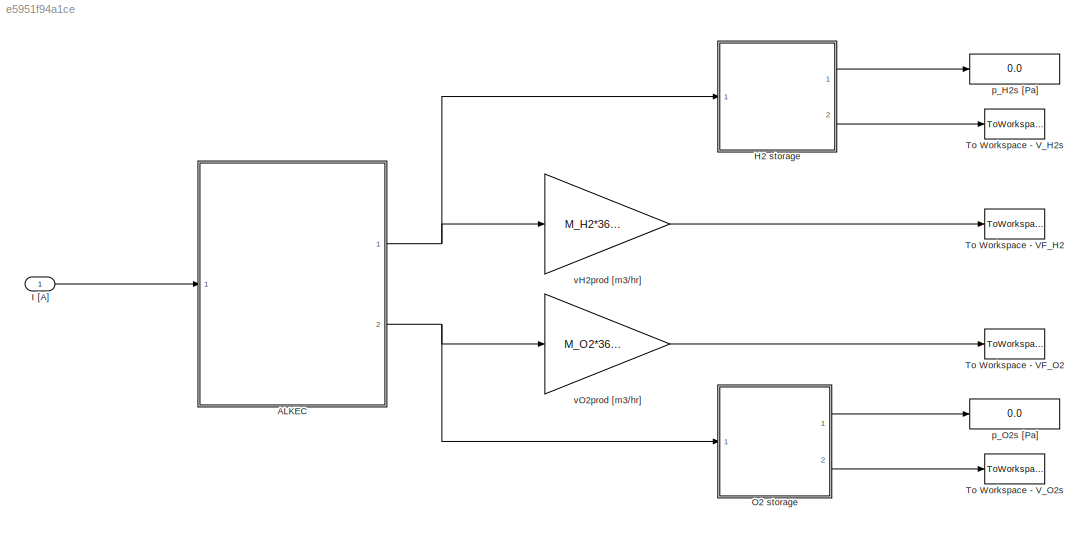
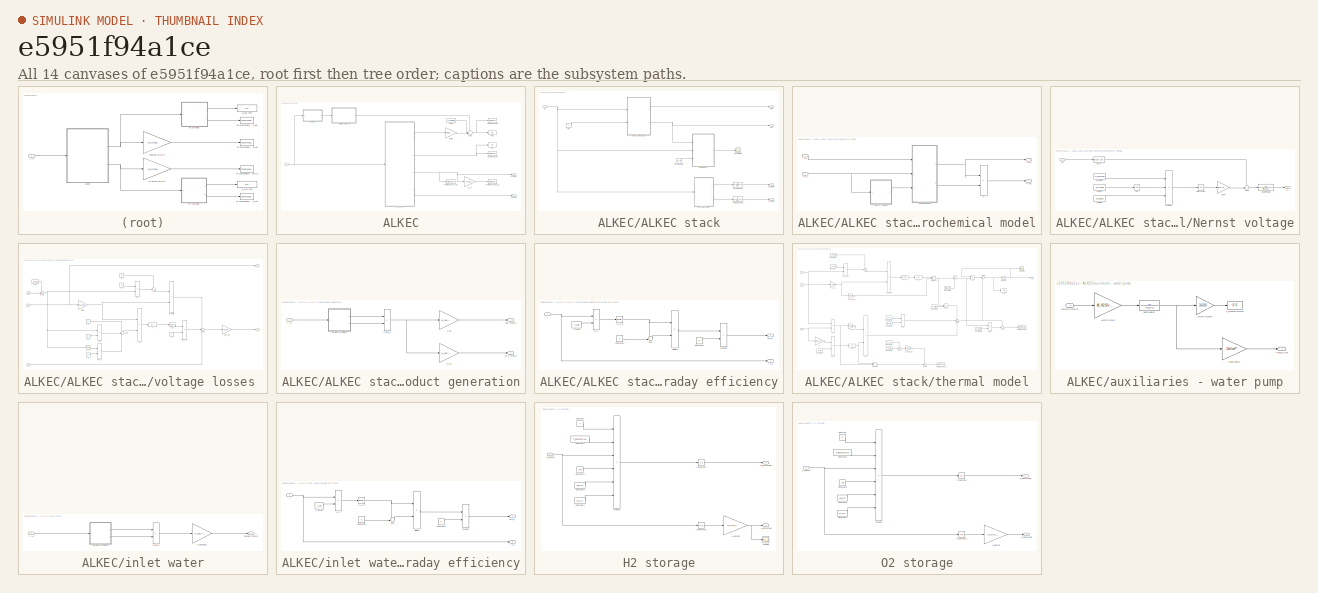
[diagram: thumbnail index - all 14 canvases of the model, root first then tree order]
MODEL slx_e5951f94a1ce
KIND model
CONFIG AbsTol = auto
CONFIG FixedStep = auto
CONFIG MaxStep = 1
CONFIG MinStep = 0.0001
CONFIG RelTol = 1e-3
CONFIG SampleTimeConstraint = Unconstrained
CONFIG Solver = VariableStepAuto
CONFIG SolverMode = SingleTasking
CONFIG SolverName = VariableStepAuto
CONFIG StartTime = 0.0
CONFIG StopTime = 1000
BLOCK [SubSystem] ALKEC
  Ports = [1, 2]
  RequestExecContextInheritance = off
  Variant = off
BLOCK [SubSystem] ALKEC/ALKEC stack
  Ports = [1, 4]
  RequestExecContextInheritance = off
  Variant = off
BLOCK [Inport] ALKEC/ALKEC stack/I [A]
  IconDisplay = Port number
BLOCK [Outport] ALKEC/ALKEC stack/P [W]
  IconDisplay = Port number
BLOCK [Constant] ALKEC/ALKEC stack/T [K]
  Value = T
BLOCK [Scope] ALKEC/ALKEC stack/T evolution K
  Ports = [1]
  ScopeSpecificationString = Simulink.scopes.TimeScopeBlockCfg('CurrentConfiguration', extmgr.ConfigurationSet(extmgr.Configuration('Core','General UI',true),extmgr.Configuration('Core','Source UI',true),extmgr.Configuration('Sources','WiredSimulink',true,'DataLoggingVariableName','ScopeData1'),extmgr.Configuration('Visuals','Time Domain',true,'SerializedDisplays',{struct('MinYLimReal','23.82628','MaxYLimReal','35.32487','YLa...<+1403ch>
BLOCK [Outport] ALKEC/ALKEC stack/V [V]
  IconDisplay = Port number
  Port = 2
BLOCK [SubSystem] ALKEC/ALKEC stack/electrochemical model
  Ports = [2, 2]
  RequestExecContextInheritance = off
  Variant = off
BLOCK [Inport] ALKEC/ALKEC stack/electrochemical model/I [A]
  IconDisplay = Port number
BLOCK [SubSystem] ALKEC/ALKEC stack/electrochemical model/Nernst voltage
  Ports = [1, 1]
  RequestExecContextInheritance = off
  Variant = off
BLOCK [Outport] ALKEC/ALKEC stack/electrochemical model/Nernst voltage/E
  IconDisplay = Port number
BLOCK [Fcn] ALKEC/ALKEC stack/electrochemical model/Nernst voltage/E0(T)
  Expr = 1.5184 - 1.5421e-03 * u + 9.523e-05 * u * log(u) + 9.84e-08 * u^2
BLOCK [Math] ALKEC/ALKEC stack/electrochemical model/Nernst voltage/Math Function
  Operator = log
  Ports = [1, 1]
BLOCK [Product] ALKEC/ALKEC stack/electrochemical model/Nernst voltage/Product
  InputSameDT = off
  Inputs = /**
  OutDataTypeStr = Inherit: Inherit via internal rule
  Ports = [3, 1]
  RndMeth = Floor
  SaturateOnIntegerOverflow = off
BLOCK [Gain] ALKEC/ALKEC stack/electrochemical model/Nernst voltage/RT//2F
  Gain = R*T/(2*F)
  OutDataTypeStr = Inherit: Inherit via internal rule
  ParamDataTypeStr = Inherit: Inherit via internal rule
  SaturateOnIntegerOverflow = off
BLOCK [Sqrt] ALKEC/ALKEC stack/electrochemical model/Nernst voltage/Sqrt
BLOCK [Sum] ALKEC/ALKEC stack/electrochemical model/Nernst voltage/Sum1
  IconShape = round
  InputSameDT = off
  Inputs = ++|
  OutDataTypeStr = Inherit: Inherit via internal rule
  Ports = [2, 1]
  SaturateOnIntegerOverflow = off
BLOCK [Inport] ALKEC/ALKEC stack/electrochemical model/Nernst voltage/T [K]
  IconDisplay = Port number
BLOCK [Constant] ALKEC/ALKEC stack/electrochemical model/Nernst voltage/pH2 [Pa]
  Value = p_H2avg
BLOCK [Constant] ALKEC/ALKEC stack/electrochemical model/Nernst voltage/pH2O [Pa]
  Value = p_H2Oavg
BLOCK [Constant] ALKEC/ALKEC stack/electrochemical model/Nernst voltage/pO2 [Pa]
  Value = p_O2avg
BLOCK [TransferFcn] ALKEC/ALKEC stack/electrochemical model/Nernst voltage/reaction delay
  Denominator = [tau_E 1]
BLOCK [Product] ALKEC/ALKEC stack/electrochemical model/P
  InputSameDT = off
  OutDataTypeStr = Inherit: Inherit via internal rule
  Ports = [2, 1]
  RndMeth = Floor
  SaturateOnIntegerOverflow = off
BLOCK [Outport] ALKEC/ALKEC stack/electrochemical model/P [W]
  IconDisplay = Port number
BLOCK [Inport] ALKEC/ALKEC stack/electrochemical model/T [K]
  IconDisplay = Port number
  Port = 2
BLOCK [Outport] ALKEC/ALKEC stack/electrochemical model/V [V]
  IconDisplay = Port number
  Port = 2
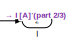
[diagram: ALKEC/ALKEC stack/electrochemical model/voltage losses  - part 1/3, top right region]
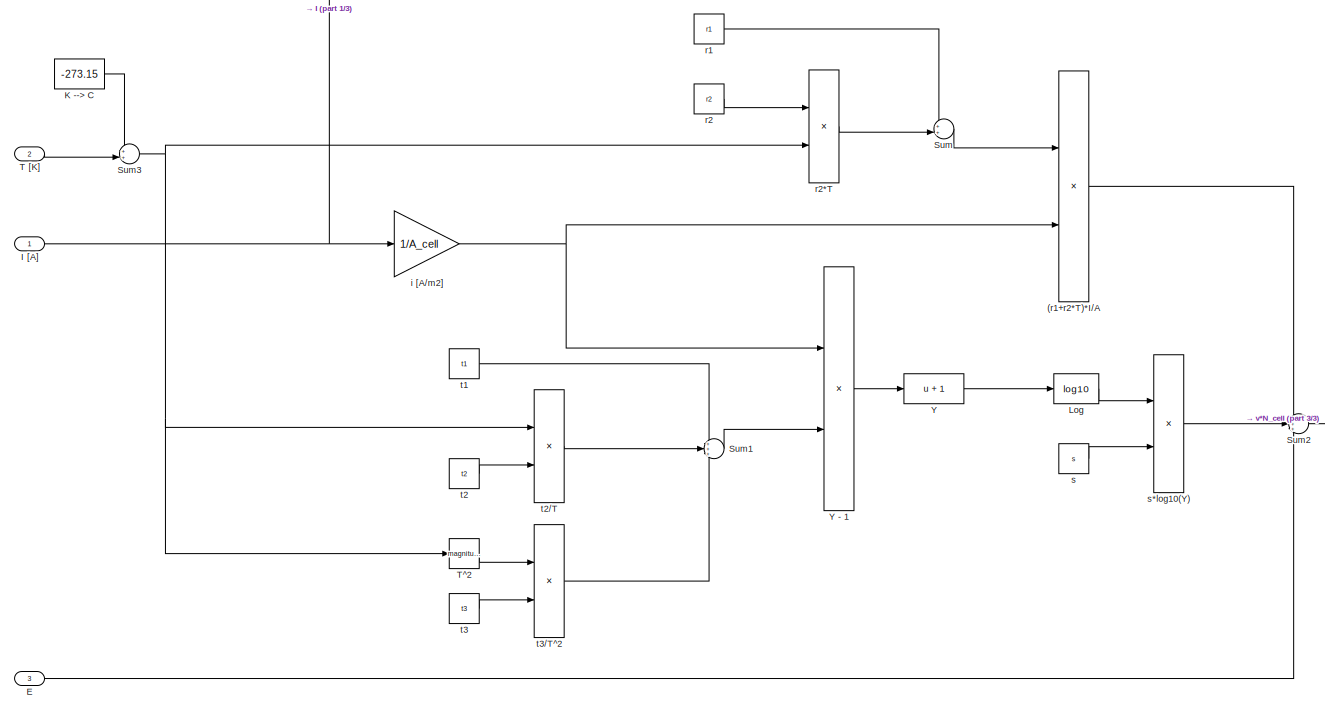
[diagram: ALKEC/ALKEC stack/electrochemical model/voltage losses  - part 2/3, most of the canvas]
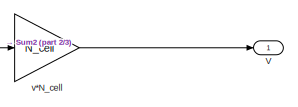
[diagram: ALKEC/ALKEC stack/electrochemical model/voltage losses  - part 3/3, middle right region]
BLOCK [SubSystem] ALKEC/ALKEC stack/electrochemical model/voltage losses 
  Ports = [3, 2]
  RequestExecContextInheritance = off
  Variant = off
BLOCK [Product] ALKEC/ALKEC stack/electrochemical model/voltage losses /(r1+r2*T)*I//A
  InputSameDT = off
  Inputs = **
  OutDataTypeStr = Inherit: Inherit via internal rule
  Ports = [2, 1]
  RndMeth = Floor
  SaturateOnIntegerOverflow = off
BLOCK [Inport] ALKEC/ALKEC stack/electrochemical model/voltage losses /E
  IconDisplay = Port number
  Port = 3
BLOCK [Outport] ALKEC/ALKEC stack/electrochemical model/voltage losses /I
  IconDisplay = Port number
  Port = 2
BLOCK [Inport] ALKEC/ALKEC stack/electrochemical model/voltage losses /I [A] 
  IconDisplay = Port number
BLOCK [Constant] ALKEC/ALKEC stack/electrochemical model/voltage losses /K --> C
  Value = -273.15
BLOCK [Math] ALKEC/ALKEC stack/electrochemical model/voltage losses /Log
  Operator = log10
  Ports = [1, 1]
BLOCK [Sum] ALKEC/ALKEC stack/electrochemical model/voltage losses /Sum
  IconShape = round
  InputSameDT = off
  Inputs = ++|
  OutDataTypeStr = Inherit: Inherit via internal rule
  Ports = [2, 1]
  SaturateOnIntegerOverflow = off
BLOCK [Sum] ALKEC/ALKEC stack/electrochemical model/voltage losses /Sum1
  IconShape = round
  InputSameDT = off
  Inputs = +++
  OutDataTypeStr = Inherit: Inherit via internal rule
  Ports = [3, 1]
  SaturateOnIntegerOverflow = off
BLOCK [Sum] ALKEC/ALKEC stack/electrochemical model/voltage losses /Sum2
  IconShape = round
  InputSameDT = off
  Inputs = +++
  OutDataTypeStr = Inherit: Inherit via internal rule
  Ports = [3, 1]
  SaturateOnIntegerOverflow = off
BLOCK [Sum] ALKEC/ALKEC stack/electrochemical model/voltage losses /Sum3
  IconShape = round
  InputSameDT = off
  Inputs = ++|
  OutDataTypeStr = Inherit: Inherit via internal rule
  Ports = [2, 1]
  SaturateOnIntegerOverflow = off
BLOCK [Inport] ALKEC/ALKEC stack/electrochemical model/voltage losses /T [K]
  IconDisplay = Port number
  Port = 2
BLOCK [Math] ALKEC/ALKEC stack/electrochemical model/voltage losses /T^2
  Operator = magnitude^2
  Ports = [1, 1]
BLOCK [Outport] ALKEC/ALKEC stack/electrochemical model/voltage losses /V
  IconDisplay = Port number
BLOCK [Fcn] ALKEC/ALKEC stack/electrochemical model/voltage losses /Y
  Expr = u + 1
BLOCK [Product] ALKEC/ALKEC stack/electrochemical model/voltage losses /Y - 1
  InputSameDT = off
  Inputs = **
  OutDataTypeStr = Inherit: Inherit via internal rule
  Ports = [2, 1]
  RndMeth = Floor
  SaturateOnIntegerOverflow = off
BLOCK [Gain] ALKEC/ALKEC stack/electrochemical model/voltage losses /i [A//m2]
  Gain = 1/A_cell
  OutDataTypeStr = Inherit: Inherit via internal rule
  ParamDataTypeStr = Inherit: Inherit via internal rule
  SaturateOnIntegerOverflow = off
BLOCK [Constant] ALKEC/ALKEC stack/electrochemical model/voltage losses /r1
  Value = r1
BLOCK [Constant] ALKEC/ALKEC stack/electrochemical model/voltage losses /r2
  Value = r2
BLOCK [Product] ALKEC/ALKEC stack/electrochemical model/voltage losses /r2*T
  InputSameDT = off
  Inputs = **
  OutDataTypeStr = Inherit: Inherit via internal rule
  Ports = [2, 1]
  RndMeth = Floor
  SaturateOnIntegerOverflow = off
BLOCK [Constant] ALKEC/ALKEC stack/electrochemical model/voltage losses /s
  Value = s
BLOCK [Product] ALKEC/ALKEC stack/electrochemical model/voltage losses /s*log10(Y)
  InputSameDT = off
  Inputs = **
  OutDataTypeStr = Inherit: Inherit via internal rule
  Ports = [2, 1]
  RndMeth = Floor
  SaturateOnIntegerOverflow = off
BLOCK [Constant] ALKEC/ALKEC stack/electrochemical model/voltage losses /t1
  Value = t1
BLOCK [Constant] ALKEC/ALKEC stack/electrochemical model/voltage losses /t2
  Value = t2
BLOCK [Product] ALKEC/ALKEC stack/electrochemical model/voltage losses /t2//T
  InputSameDT = off
  Inputs = /*
  OutDataTypeStr = Inherit: Inherit via internal rule
  Ports = [2, 1]
  RndMeth = Floor
  SaturateOnIntegerOverflow = off
BLOCK [Constant] ALKEC/ALKEC stack/electrochemical model/voltage losses /t3
  Value = t3
BLOCK [Product] ALKEC/ALKEC stack/electrochemical model/voltage losses /t3//T^2
  InputSameDT = off
  Inputs = /*
  OutDataTypeStr = Inherit: Inherit via internal rule
  Ports = [2, 1]
  RndMeth = Floor
  SaturateOnIntegerOverflow = off
BLOCK [Gain] ALKEC/ALKEC stack/electrochemical model/voltage losses /v*N_cell
  Gain = N_cell
  OutDataTypeStr = Inherit: Inherit via internal rule
  ParamDataTypeStr = Inherit: Inherit via internal rule
  SaturateOnIntegerOverflow = off
BLOCK [TransferFcn] ALKEC/ALKEC stack/hydrogen delay
  Denominator = [5 1]
BLOCK [Constant] ALKEC/ALKEC stack/m cooling [kg//s]
  Value = m_cw
BLOCK [Outport] ALKEC/ALKEC stack/nH2 [mol//s]
  IconDisplay = Port number
  Port = 3
BLOCK [Outport] ALKEC/ALKEC stack/nO2 [mol//s]
  IconDisplay = Port number
  Port = 4
BLOCK [TransferFcn] ALKEC/ALKEC stack/oxygen delay
  Denominator = [5 1]
BLOCK [SubSystem] ALKEC/ALKEC stack/product generation
  Ports = [1, 2]
  RequestExecContextInheritance = off
  Variant = off
BLOCK [SubSystem] ALKEC/ALKEC stack/product generation/Faraday efficiency
  Ports = [1, 2]
  RequestExecContextInheritance = off
  Variant = off
BLOCK [Math] ALKEC/ALKEC stack/product generation/Faraday efficiency/(I//A)^2
  Operator = magnitude^2
  Ports = [1, 1]
BLOCK [Constant] ALKEC/ALKEC stack/product generation/Faraday efficiency/A [m2]
  Value = A_cell
BLOCK [Constant] ALKEC/ALKEC stack/product generation/Faraday efficiency/Constant1
  Value = f1
BLOCK [Constant] ALKEC/ALKEC stack/product generation/Faraday efficiency/Constant2
  Value = f2
BLOCK [Product] ALKEC/ALKEC stack/product generation/Faraday efficiency/Divide1
  InputSameDT = off
  Inputs = */
  OutDataTypeStr = Inherit: Inherit via internal rule
  Ports = [2, 1]
  RndMeth = Floor
  SaturateOnIntegerOverflow = off
BLOCK [Inport] ALKEC/ALKEC stack/product generation/Faraday efficiency/I
  IconDisplay = Port number
BLOCK [Outport] ALKEC/ALKEC stack/product generation/Faraday efficiency/I [A]
  IconDisplay = Port number
  Port = 2
BLOCK [Product] ALKEC/ALKEC stack/product generation/Faraday efficiency/I//A
  InputSameDT = off
  Inputs = */
  OutDataTypeStr = Inherit: Inherit via internal rule
  Ports = [2, 1]
  RndMeth = Floor
  SaturateOnIntegerOverflow = off
BLOCK [Product] ALKEC/ALKEC stack/product generation/Faraday efficiency/Product
  InputSameDT = off
  OutDataTypeStr = Inherit: Inherit via internal rule
  Ports = [2, 1]
  RndMeth = Floor
  SaturateOnIntegerOverflow = off
BLOCK [Sum] ALKEC/ALKEC stack/product generation/Faraday efficiency/Sum
  IconShape = round
  InputSameDT = off
  Inputs = ++|
  OutDataTypeStr = Inherit: Inherit via internal rule
  Ports = [2, 1]
  SaturateOnIntegerOverflow = off
BLOCK [Outport] ALKEC/ALKEC stack/product generation/Faraday efficiency/eta_F
  IconDisplay = Port number
BLOCK [Inport] ALKEC/ALKEC stack/product generation/I [A]
  IconDisplay = Port number
BLOCK [Product] ALKEC/ALKEC stack/product generation/I*eta_F
  InputSameDT = off
  OutDataTypeStr = Inherit: Inherit via internal rule
  Ports = [2, 1]
  RndMeth = Floor
  SaturateOnIntegerOverflow = off
BLOCK [Outport] ALKEC/ALKEC stack/product generation/nH2 [mol//s]
  IconDisplay = Port number
  Port = 2
BLOCK [Outport] ALKEC/ALKEC stack/product generation/nO2 [mol//s]
  IconDisplay = Port number
BLOCK [Gain] ALKEC/ALKEC stack/product generation/n_H2
  Gain = N_cell/(2*F)
  OutDataTypeStr = Inherit: Inherit via internal rule
  ParamDataTypeStr = Inherit: Inherit via internal rule
  SaturateOnIntegerOverflow = off
BLOCK [Gain] ALKEC/ALKEC stack/product generation/n_O2
  Gain = N_cell/(4*F)
  OutDataTypeStr = Inherit: Inherit via internal rule
  ParamDataTypeStr = Inherit: Inherit via internal rule
  SaturateOnIntegerOverflow = off
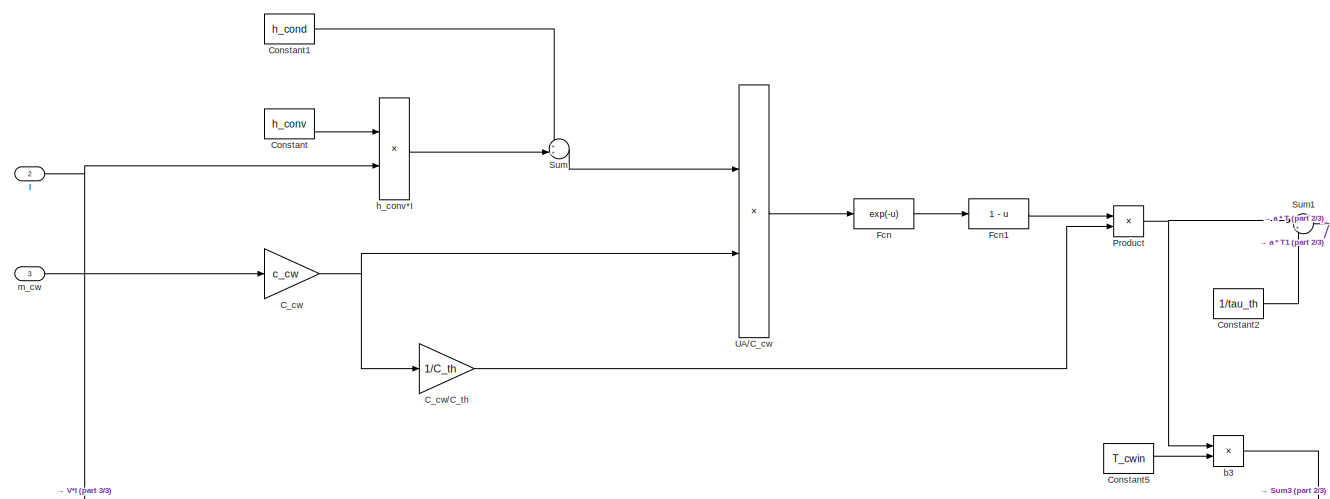
[diagram: ALKEC/ALKEC stack/thermal model - part 1/3, top center region]
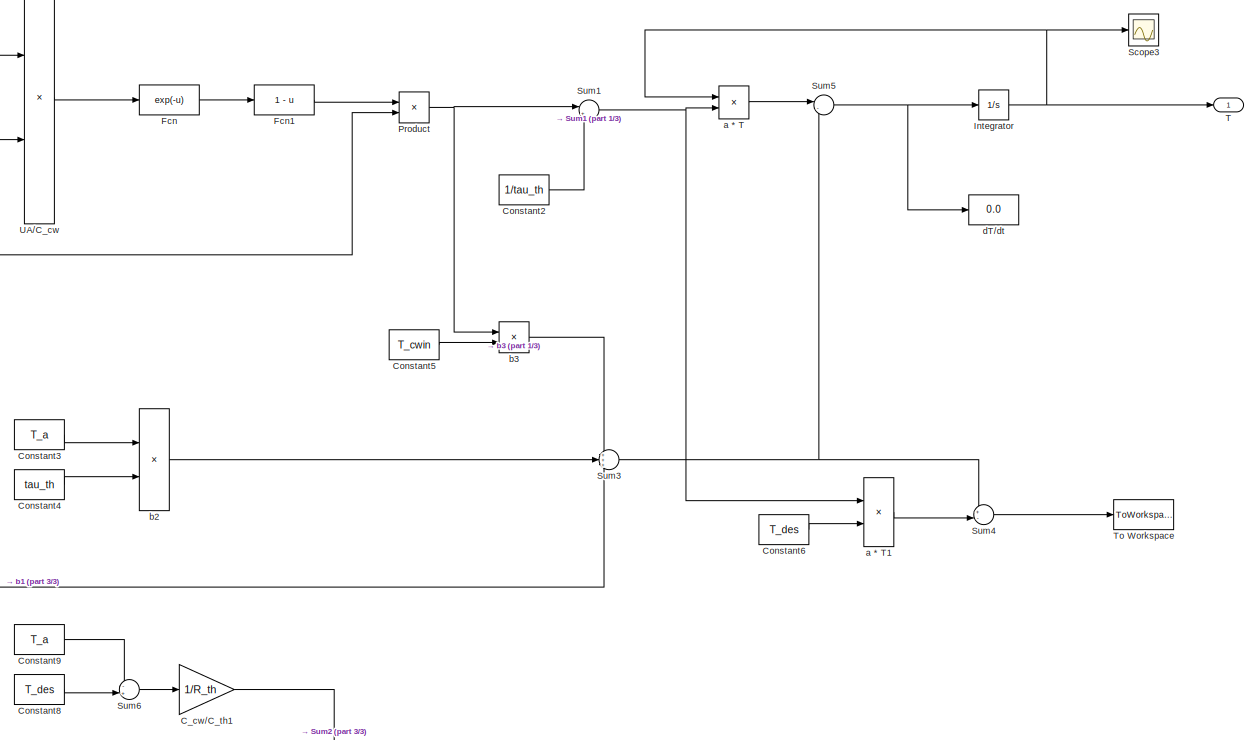
[diagram: ALKEC/ALKEC stack/thermal model - part 2/3, right side, full height]
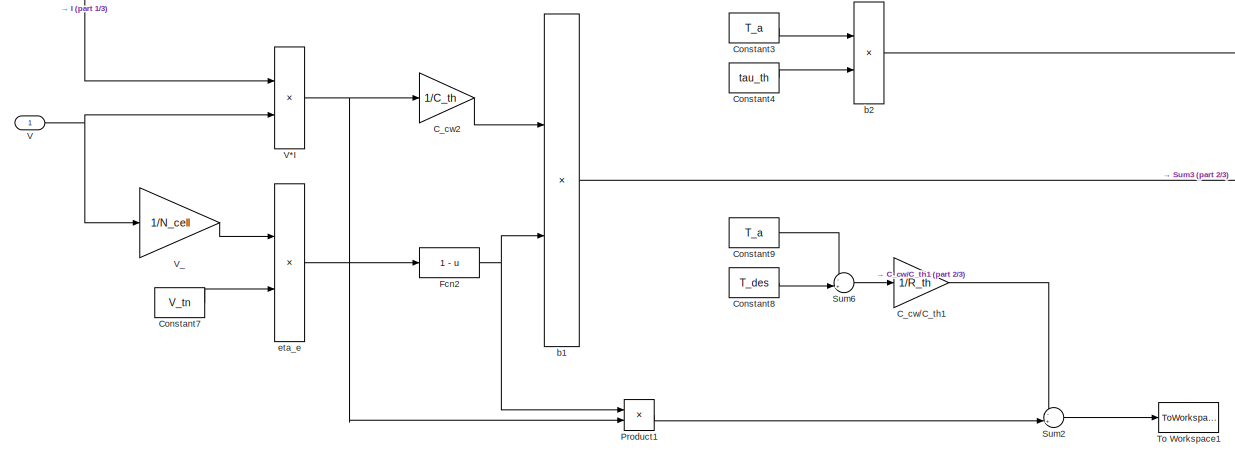
[diagram: ALKEC/ALKEC stack/thermal model - part 3/3, bottom left region]
BLOCK [SubSystem] ALKEC/ALKEC stack/thermal model
  Ports = [3, 1]
  RequestExecContextInheritance = off
  Variant = off
BLOCK [Gain] ALKEC/ALKEC stack/thermal model/C_cw
  Gain = c_cw
  OutDataTypeStr = Inherit: Inherit via internal rule
  ParamDataTypeStr = Inherit: Inherit via internal rule
  SaturateOnIntegerOverflow = off
BLOCK [Gain] ALKEC/ALKEC stack/thermal model/C_cw//C_th
  Gain = 1/C_th
  OutDataTypeStr = Inherit: Inherit via internal rule
  ParamDataTypeStr = Inherit: Inherit via internal rule
  SaturateOnIntegerOverflow = off
BLOCK [Gain] ALKEC/ALKEC stack/thermal model/C_cw//C_th1
  Gain = 1/R_th
  OutDataTypeStr = Inherit: Inherit via internal rule
  ParamDataTypeStr = Inherit: Inherit via internal rule
  SaturateOnIntegerOverflow = off
BLOCK [Gain] ALKEC/ALKEC stack/thermal model/C_cw2
  Gain = 1/C_th
  OutDataTypeStr = Inherit: Inherit via internal rule
  ParamDataTypeStr = Inherit: Inherit via internal rule
  SaturateOnIntegerOverflow = off
BLOCK [Constant] ALKEC/ALKEC stack/thermal model/Constant
  Value = h_conv
BLOCK [Constant] ALKEC/ALKEC stack/thermal model/Constant1
  Value = h_cond
BLOCK [Constant] ALKEC/ALKEC stack/thermal model/Constant2
  Value = 1/tau_th
BLOCK [Constant] ALKEC/ALKEC stack/thermal model/Constant3
  Value = T_a
BLOCK [Constant] ALKEC/ALKEC stack/thermal model/Constant4
  Value = tau_th
BLOCK [Constant] ALKEC/ALKEC stack/thermal model/Constant5
  Value = T_cwin
BLOCK [Constant] ALKEC/ALKEC stack/thermal model/Constant6
  Value = T_des
BLOCK [Constant] ALKEC/ALKEC stack/thermal model/Constant7
  Value = V_tn
BLOCK [Constant] ALKEC/ALKEC stack/thermal model/Constant8
  Value = T_des
BLOCK [Constant] ALKEC/ALKEC stack/thermal model/Constant9
  Value = T_a
BLOCK [Fcn] ALKEC/ALKEC stack/thermal model/Fcn
  Expr = exp(-u)
BLOCK [Fcn] ALKEC/ALKEC stack/thermal model/Fcn1
  Expr = 1 - u
BLOCK [Fcn] ALKEC/ALKEC stack/thermal model/Fcn2
  Expr = 1 - u
BLOCK [Inport] ALKEC/ALKEC stack/thermal model/I
  IconDisplay = Port number
  Port = 2
BLOCK [Integrator] ALKEC/ALKEC stack/thermal model/Integrator
  InitialCondition = T0
  Ports = [1, 1]
BLOCK [Product] ALKEC/ALKEC stack/thermal model/Product
  InputSameDT = off
  OutDataTypeStr = Inherit: Inherit via internal rule
  Ports = [2, 1]
  RndMeth = Floor
  SaturateOnIntegerOverflow = off
BLOCK [Product] ALKEC/ALKEC stack/thermal model/Product1
  InputSameDT = off
  OutDataTypeStr = Inherit: Inherit via internal rule
  Ports = [2, 1]
  RndMeth = Floor
  SaturateOnIntegerOverflow = off
BLOCK [Scope] ALKEC/ALKEC stack/thermal model/Scope3
  Ports = [1]
  ScopeSpecificationString = Simulink.scopes.TimeScopeBlockCfg('CurrentConfiguration', extmgr.ConfigurationSet(extmgr.Configuration('Core','General UI',true),extmgr.Configuration('Core','Source UI',true),extmgr.Configuration('Sources','WiredSimulink',true,'DataLoggingVariableName','ScopeData1'),extmgr.Configuration('Visuals','Time Domain',true,'SerializedDisplays',{struct('MinYLimReal','23.82628','MaxYLimReal','35.32487','YLa...<+1429ch>
BLOCK [Sum] ALKEC/ALKEC stack/thermal model/Sum
  IconShape = round
  InputSameDT = off
  Inputs = ++|
  OutDataTypeStr = Inherit: Inherit via internal rule
  Ports = [2, 1]
  SaturateOnIntegerOverflow = off
BLOCK [Sum] ALKEC/ALKEC stack/thermal model/Sum1
  IconShape = round
  InputSameDT = off
  Inputs = |++
  OutDataTypeStr = Inherit: Inherit via internal rule
  Ports = [2, 1]
  SaturateOnIntegerOverflow = off
BLOCK [Sum] ALKEC/ALKEC stack/thermal model/Sum2
  IconShape = round
  InputSameDT = off
  Inputs = -+|
  OutDataTypeStr = Inherit: Inherit via internal rule
  Ports = [2, 1]
  SaturateOnIntegerOverflow = off
BLOCK [Sum] ALKEC/ALKEC stack/thermal model/Sum3
  IconShape = round
  InputSameDT = off
  Inputs = +++
  OutDataTypeStr = Inherit: Inherit via internal rule
  Ports = [3, 1]
  SaturateOnIntegerOverflow = off
BLOCK [Sum] ALKEC/ALKEC stack/thermal model/Sum4
  IconShape = round
  InputSameDT = off
  Inputs = +-|
  OutDataTypeStr = Inherit: Inherit via internal rule
  Ports = [2, 1]
  SaturateOnIntegerOverflow = off
BLOCK [Sum] ALKEC/ALKEC stack/thermal model/Sum5
  IconShape = round
  InputSameDT = off
  Inputs = |-+
  OutDataTypeStr = Inherit: Inherit via internal rule
  Ports = [2, 1]
  SaturateOnIntegerOverflow = off
BLOCK [Sum] ALKEC/ALKEC stack/thermal model/Sum6
  IconShape = round
  InputSameDT = off
  Inputs = -+|
  OutDataTypeStr = Inherit: Inherit via internal rule
  Ports = [2, 1]
  SaturateOnIntegerOverflow = off
BLOCK [Outport] ALKEC/ALKEC stack/thermal model/T
  IconDisplay = Port number
BLOCK [ToWorkspace] ALKEC/ALKEC stack/thermal model/To Workspace
  FixptAsFi = on
  MaxDataPoints = inf
  Ports = [1]
  SampleTime = -1
  Save2DSignal = 3-D array (concatenate along third dimension)
  SaveFormat = Timeseries
  VariableName = dTdt
BLOCK [ToWorkspace] ALKEC/ALKEC stack/thermal model/To Workspace1
  FixptAsFi = on
  MaxDataPoints = inf
  Ports = [1]
  SampleTime = -1
  Save2DSignal = 3-D array (concatenate along third dimension)
  SaveFormat = Timeseries
  VariableName = Qcool
BLOCK [Product] ALKEC/ALKEC stack/thermal model/UA//C_cw
  InputSameDT = off
  Inputs = */
  OutDataTypeStr = Inherit: Inherit via internal rule
  Ports = [2, 1]
  RndMeth = Floor
  SaturateOnIntegerOverflow = off
BLOCK [Inport] ALKEC/ALKEC stack/thermal model/V
  IconDisplay = Port number
BLOCK [Product] ALKEC/ALKEC stack/thermal model/V*I
  InputSameDT = off
  OutDataTypeStr = Inherit: Inherit via internal rule
  Ports = [2, 1]
  RndMeth = Floor
  SaturateOnIntegerOverflow = off
BLOCK [Gain] ALKEC/ALKEC stack/thermal model/V_
  Gain = 1/N_cell
  OutDataTypeStr = Inherit: Inherit via internal rule
  ParamDataTypeStr = Inherit: Inherit via internal rule
  SaturateOnIntegerOverflow = off
BLOCK [Product] ALKEC/ALKEC stack/thermal model/a * T
  InputSameDT = off
  OutDataTypeStr = Inherit: Inherit via internal rule
  Ports = [2, 1]
  RndMeth = Floor
  SaturateOnIntegerOverflow = off
BLOCK [Product] ALKEC/ALKEC stack/thermal model/a * T1
  InputSameDT = off
  OutDataTypeStr = Inherit: Inherit via internal rule
  Ports = [2, 1]
  RndMeth = Floor
  SaturateOnIntegerOverflow = off
BLOCK [Product] ALKEC/ALKEC stack/thermal model/b1
  InputSameDT = off
  OutDataTypeStr = Inherit: Inherit via internal rule
  Ports = [2, 1]
  RndMeth = Floor
  SaturateOnIntegerOverflow = off
BLOCK [Product] ALKEC/ALKEC stack/thermal model/b2
  InputSameDT = off
  Inputs = */
  OutDataTypeStr = Inherit: Inherit via internal rule
  Ports = [2, 1]
  RndMeth = Floor
  SaturateOnIntegerOverflow = off
BLOCK [Product] ALKEC/ALKEC stack/thermal model/b3
  InputSameDT = off
  OutDataTypeStr = Inherit: Inherit via internal rule
  Ports = [2, 1]
  RndMeth = Floor
  SaturateOnIntegerOverflow = off
BLOCK [Display] ALKEC/ALKEC stack/thermal model/dT//dt
  Decimation = 1
  Ports = [1]
BLOCK [Product] ALKEC/ALKEC stack/thermal model/eta_e
  InputSameDT = off
  Inputs = /*
  OutDataTypeStr = Inherit: Inherit via internal rule
  Ports = [2, 1]
  RndMeth = Floor
  SaturateOnIntegerOverflow = off
BLOCK [Product] ALKEC/ALKEC stack/thermal model/h_conv*I
  InputSameDT = off
  OutDataTypeStr = Inherit: Inherit via internal rule
  Ports = [2, 1]
  RndMeth = Floor
  SaturateOnIntegerOverflow = off
BLOCK [Inport] ALKEC/ALKEC stack/thermal model/m_cw
  IconDisplay = Port number
  Port = 3
BLOCK [Inport] ALKEC/I
  IconDisplay = Port number
BLOCK [Display] ALKEC/P [W]
  Decimation = 1
  Ports = [1]
BLOCK [Constant] ALKEC/PBOP
  Value = P_gamma
BLOCK [Gain] ALKEC/Q_H2
  Gain = 2*120
  OutDataTypeStr = Inherit: Inherit via internal rule
  ParamDataTypeStr = Inherit: Inherit via internal rule
  SaturateOnIntegerOverflow = off
BLOCK [Sum] ALKEC/Sum1
  IconShape = round
  InputSameDT = off
  Inputs = +++||
  OutDataTypeStr = Inherit: Inherit via internal rule
  Ports = [3, 1]
  SaturateOnIntegerOverflow = off
BLOCK [ToWorkspace] ALKEC/To Workspace - P
  FixptAsFi = on
  MaxDataPoints = inf
  Ports = [1]
  SampleTime = -1
  Save2DSignal = 3-D array (concatenate along third dimension)
  SaveFormat = Timeseries
  VariableName = PP
BLOCK [ToWorkspace] ALKEC/To Workspace - Q_H2
  FixptAsFi = on
  MaxDataPoints = inf
  Ports = [1]
  SampleTime = -1
  Save2DSignal = 3-D array (concatenate along third dimension)
  SaveFormat = Timeseries
  VariableName = Q_H2
BLOCK [ToWorkspace] ALKEC/To Workspace - V
  FixptAsFi = on
  MaxDataPoints = inf
  Ports = [1]
  SampleTime = -1
  Save2DSignal = 3-D array (concatenate along third dimension)
  SaveFormat = Timeseries
  VariableName = VV
BLOCK [ToWorkspace] ALKEC/To Workspace - n_H2
  FixptAsFi = on
  MaxDataPoints = inf
  Ports = [1]
  SampleTime = -1
  Save2DSignal = 3-D array (concatenate along third dimension)
  SaveFormat = Timeseries
  VariableName = n_H2
BLOCK [Display] ALKEC/V [V]
  Decimation = 1
  Ports = [1]
BLOCK [SubSystem] ALKEC/auxiliaries - water pump
  Ports = [1, 1]
  RequestExecContextInheritance = off
  Variant = off
BLOCK [Gain] ALKEC/auxiliaries - water pump/Paux pump
  Gain = DeltaP
  OutDataTypeStr = Inherit: Inherit via internal rule
  ParamDataTypeStr = Inherit: Inherit via internal rule
  SaturateOnIntegerOverflow = off
BLOCK [Outport] ALKEC/auxiliaries - water pump/Paux_p [W]
  IconDisplay = Port number
BLOCK [Inport] ALKEC/auxiliaries - water pump/nH2Oin [mol//s]
  IconDisplay = Port number
BLOCK [TransferFcn] ALKEC/auxiliaries - water pump/pump delay
  Denominator = [tau_p 1]
BLOCK [Gain] ALKEC/auxiliaries - water pump/vH2in [m3//hr]
  Gain = 3600
  OutDataTypeStr = Inherit: Inherit via internal rule
  ParamDataTypeStr = Inherit: Inherit via internal rule
  SaturateOnIntegerOverflow = off
BLOCK [Gain] ALKEC/auxiliaries - water pump/vH2in [m3//s]
  Gain = M_H2O/v_H2O
  OutDataTypeStr = Inherit: Inherit via internal rule
  ParamDataTypeStr = Inherit: Inherit via internal rule
  SaturateOnIntegerOverflow = off
BLOCK [Display] ALKEC/auxiliaries - water pump/v_H2Oan [m3//hr]
  Decimation = 1
  Ports = [1]
BLOCK [SubSystem] ALKEC/inlet water
  Ports = [1, 1]
  RequestExecContextInheritance = off
  Variant = off
BLOCK [SubSystem] ALKEC/inlet water/Faraday efficiency
  Ports = [1, 2]
  RequestExecContextInheritance = off
  Variant = off
BLOCK [Math] ALKEC/inlet water/Faraday efficiency/(I//A)^2
  Operator = magnitude^2
  Ports = [1, 1]
BLOCK [Constant] ALKEC/inlet water/Faraday efficiency/A [m2]
  Value = A_cell
BLOCK [Constant] ALKEC/inlet water/Faraday efficiency/Constant1
  Value = f1
BLOCK [Constant] ALKEC/inlet water/Faraday efficiency/Constant2
  Value = f2
BLOCK [Product] ALKEC/inlet water/Faraday efficiency/Divide1
  InputSameDT = off
  Inputs = */
  OutDataTypeStr = Inherit: Inherit via internal rule
  Ports = [2, 1]
  RndMeth = Floor
  SaturateOnIntegerOverflow = off
BLOCK [Inport] ALKEC/inlet water/Faraday efficiency/I
  IconDisplay = Port number
BLOCK [Outport] ALKEC/inlet water/Faraday efficiency/I [A]
  IconDisplay = Port number
  Port = 2
BLOCK [Product] ALKEC/inlet water/Faraday efficiency/I//A
  InputSameDT = off
  Inputs = */
  OutDataTypeStr = Inherit: Inherit via internal rule
  Ports = [2, 1]
  RndMeth = Floor
  SaturateOnIntegerOverflow = off
BLOCK [Product] ALKEC/inlet water/Faraday efficiency/Product
  InputSameDT = off
  OutDataTypeStr = Inherit: Inherit via internal rule
  Ports = [2, 1]
  RndMeth = Floor
  SaturateOnIntegerOverflow = off
BLOCK [Sum] ALKEC/inlet water/Faraday efficiency/Sum
  IconShape = round
  InputSameDT = off
  Inputs = ++|
  OutDataTypeStr = Inherit: Inherit via internal rule
  Ports = [2, 1]
  SaturateOnIntegerOverflow = off
BLOCK [Outport] ALKEC/inlet water/Faraday efficiency/eta_F
  IconDisplay = Port number
BLOCK [Inport] ALKEC/inlet water/I [A]
  IconDisplay = Port number
BLOCK [Product] ALKEC/inlet water/I*eta_F
  InputSameDT = off
  OutDataTypeStr = Inherit: Inherit via internal rule
  Ports = [2, 1]
  RndMeth = Floor
  SaturateOnIntegerOverflow = off
BLOCK [Outport] ALKEC/inlet water/nH2Oan [mol//s] 
  IconDisplay = Port number
BLOCK [Gain] ALKEC/inlet water/n_H2Ocons1
  Gain = N_cell/(2*F*U)
  OutDataTypeStr = Inherit: Inherit via internal rule
  ParamDataTypeStr = Inherit: Inherit via internal rule
  SaturateOnIntegerOverflow = off
BLOCK [Outport] ALKEC/nH2 [mol//s]
  IconDisplay = Port number
BLOCK [Outport] ALKEC/nO2 [mol//s]
  IconDisplay = Port number
  Port = 2
BLOCK [Gain] ALKEC/rectifier
  Gain = 1/eta_ACDC
  OutDataTypeStr = Inherit: Inherit via internal rule
  ParamDataTypeStr = Inherit: Inherit via internal rule
  SaturateOnIntegerOverflow = off
BLOCK [SubSystem] H2 storage
  Ports = [1, 2]
  RequestExecContextInheritance = off
  Variant = off
BLOCK [Constant] H2 storage/Constant
  Value = R
BLOCK [Constant] H2 storage/Constant1
  Value = T_amb+273.15
BLOCK [Constant] H2 storage/Constant2
  Value = zeta
BLOCK [Constant] H2 storage/Constant3
  Value = VS_H2
BLOCK [Constant] H2 storage/Constant4
  Value = M_H2
BLOCK [Integrator] H2 storage/Integrator
  InitialCondition = 101325
  Ports = [1, 1]
BLOCK [Integrator] H2 storage/Integrator1
  Ports = [1, 1]
BLOCK [Product] H2 storage/Product
  InputSameDT = off
  Inputs = ****//
  OutDataTypeStr = Inherit: Inherit via internal rule
  Ports = [6, 1]
  RndMeth = Floor
  SaturateOnIntegerOverflow = off
BLOCK [Scope] H2 storage/Scope3
  Ports = [1]
  ScopeSpecificationString = Simulink.scopes.TimeScopeBlockCfg('CurrentConfiguration', extmgr.ConfigurationSet(extmgr.Configuration('Core','General UI',true),extmgr.Configuration('Core','Source UI',true),extmgr.Configuration('Sources','WiredSimulink',true,'DataLoggingVariableName','ScopeData1'),extmgr.Configuration('Visuals','Time Domain',true,'SerializedDisplays',{struct('MinYLimReal','-0.02021','MaxYLimReal','0.18191','YLab...<+1421ch>
BLOCK [Gain] H2 storage/V_H2prod
  Gain = M_H2/v_H240
  OutDataTypeStr = Inherit: Inherit via internal rule
  ParamDataTypeStr = Inherit: Inherit via internal rule
  SaturateOnIntegerOverflow = off
BLOCK [Outport] H2 storage/V_H2storage
  IconDisplay = Port number
  Port = 2
BLOCK [Inport] H2 storage/n_H2prod
  IconDisplay = Port number
BLOCK [Outport] H2 storage/p_H2storage
  IconDisplay = Port number
BLOCK [Inport] I [A]
  IconDisplay = Port number
BLOCK [SubSystem] O2 storage
  Ports = [1, 2]
  RequestExecContextInheritance = off
  Variant = off
BLOCK [Constant] O2 storage/Constant
  Value = R
BLOCK [Constant] O2 storage/Constant1
  Value = T_amb+273.15
BLOCK [Constant] O2 storage/Constant2
  Value = zeta
BLOCK [Constant] O2 storage/Constant3
  Value = VS_O2
BLOCK [Constant] O2 storage/Constant4
  Value = M_O2
BLOCK [Integrator] O2 storage/Integrator
  InitialCondition = 101325
  Ports = [1, 1]
BLOCK [Integrator] O2 storage/Integrator1
  Ports = [1, 1]
BLOCK [Product] O2 storage/Product
  InputSameDT = off
  Inputs = ****//
  OutDataTypeStr = Inherit: Inherit via internal rule
  Ports = [6, 1]
  RndMeth = Floor
  SaturateOnIntegerOverflow = off
BLOCK [Gain] O2 storage/V_O2prod
  Gain = M_O2/v_O240
  OutDataTypeStr = Inherit: Inherit via internal rule
  ParamDataTypeStr = Inherit: Inherit via internal rule
  SaturateOnIntegerOverflow = off
BLOCK [Outport] O2 storage/V_O2storage
  IconDisplay = Port number
  Port = 2
BLOCK [Inport] O2 storage/n_O2prod
  IconDisplay = Port number
BLOCK [Outport] O2 storage/p_O2storage
  IconDisplay = Port number
BLOCK [ToWorkspace] To Workspace - VF_H2
  FixptAsFi = on
  MaxDataPoints = inf
  Ports = [1]
  SampleTime = -1
  Save2DSignal = 3-D array (concatenate along third dimension)
  SaveFormat = Timeseries
  VariableName = VF_H2
BLOCK [ToWorkspace] To Workspace - VF_O2
  FixptAsFi = on
  MaxDataPoints = inf
  Ports = [1]
  SampleTime = -1
  Save2DSignal = 3-D array (concatenate along third dimension)
  SaveFormat = Timeseries
  VariableName = VF_O2
BLOCK [ToWorkspace] To Workspace - V_H2s
  FixptAsFi = on
  MaxDataPoints = inf
  Ports = [1]
  SampleTime = -1
  Save2DSignal = 3-D array (concatenate along third dimension)
  SaveFormat = Timeseries
  VariableName = V_H2
BLOCK [ToWorkspace] To Workspace - V_O2s
  FixptAsFi = on
  MaxDataPoints = inf
  Ports = [1]
  SampleTime = -1
  Save2DSignal = 3-D array (concatenate along third dimension)
  SaveFormat = Timeseries
  VariableName = V_O2
BLOCK [Display] p_H2s [Pa]
  Decimation = 1
  Ports = [1]
BLOCK [Display] p_O2s [Pa]
  Decimation = 1
  Ports = [1]
BLOCK [Gain] vH2prod [m3//hr]
  Gain = M_H2*3600/v_H2
  OutDataTypeStr = Inherit: Inherit via internal rule
  ParamDataTypeStr = Inherit: Inherit via internal rule
  SaturateOnIntegerOverflow = off
BLOCK [Gain] vO2prod [m3//hr]
  Gain = M_O2*3600/v_O2
  OutDataTypeStr = Inherit: Inherit via internal rule
  ParamDataTypeStr = Inherit: Inherit via internal rule
  SaturateOnIntegerOverflow = off
NET ALKEC/ALKEC stack/I [A]:1 -> ALKEC/ALKEC stack/electrochemical model:1, ALKEC/ALKEC stack/product generation:1, ALKEC/ALKEC stack/thermal model:2
LINE ALKEC/ALKEC stack/T [K]:1 -> ALKEC/ALKEC stack/electrochemical model:2
LINE ALKEC/ALKEC stack/electrochemical model/I [A]:1 -> ALKEC/ALKEC stack/electrochemical model/voltage losses :1
LINE ALKEC/ALKEC stack/electrochemical model/Nernst voltage/E0(T):1 -> ALKEC/ALKEC stack/electrochemical model/Nernst voltage/Sum1:1
LINE ALKEC/ALKEC stack/electrochemical model/Nernst voltage/Math Function:1 -> ALKEC/ALKEC stack/electrochemical model/Nernst voltage/RT//2F:1
LINE ALKEC/ALKEC stack/electrochemical model/Nernst voltage/Product:1 -> ALKEC/ALKEC stack/electrochemical model/Nernst voltage/Math Function:1
LINE ALKEC/ALKEC stack/electrochemical model/Nernst voltage/RT//2F:1 -> ALKEC/ALKEC stack/electrochemical model/Nernst voltage/Sum1:2
LINE ALKEC/ALKEC stack/electrochemical model/Nernst voltage/Sqrt:1 -> ALKEC/ALKEC stack/electrochemical model/Nernst voltage/Product:2
LINE ALKEC/ALKEC stack/electrochemical model/Nernst voltage/Sum1:1 -> ALKEC/ALKEC stack/electrochemical model/Nernst voltage/reaction delay:1
LINE ALKEC/ALKEC stack/electrochemical model/Nernst voltage/T [K]:1 -> ALKEC/ALKEC stack/electrochemical model/Nernst voltage/E0(T):1
LINE ALKEC/ALKEC stack/electrochemical model/Nernst voltage/pH2 [Pa]:1 -> ALKEC/ALKEC stack/electrochemical model/Nernst voltage/Product:3
LINE ALKEC/ALKEC stack/electrochemical model/Nernst voltage/pH2O [Pa]:1 -> ALKEC/ALKEC stack/electrochemical model/Nernst voltage/Product:1
LINE ALKEC/ALKEC stack/electrochemical model/Nernst voltage/pO2 [Pa]:1 -> ALKEC/ALKEC stack/electrochemical model/Nernst voltage/Sqrt:1
LINE ALKEC/ALKEC stack/electrochemical model/Nernst voltage/reaction delay:1 -> ALKEC/ALKEC stack/electrochemical model/Nernst voltage/E:1
LINE ALKEC/ALKEC stack/electrochemical model/Nernst voltage:1 -> ALKEC/ALKEC stack/electrochemical model/voltage losses :3
LINE ALKEC/ALKEC stack/electrochemical model/P:1 -> ALKEC/ALKEC stack/electrochemical model/P [W]:1
NET ALKEC/ALKEC stack/electrochemical model/T [K]:1 -> ALKEC/ALKEC stack/electrochemical model/Nernst voltage:1, ALKEC/ALKEC stack/electrochemical model/voltage losses :2
LINE ALKEC/ALKEC stack/electrochemical model/voltage losses /(r1+r2*T)*I//A:1 -> ALKEC/ALKEC stack/electrochemical model/voltage losses /Sum2:1
LINE ALKEC/ALKEC stack/electrochemical model/voltage losses /E:1 -> ALKEC/ALKEC stack/electrochemical model/voltage losses /Sum2:3
NET ALKEC/ALKEC stack/electrochemical model/voltage losses /I [A] :1 -> ALKEC/ALKEC stack/electrochemical model/voltage losses /I:1, ALKEC/ALKEC stack/electrochemical model/voltage losses /i [A//m2]:1
LINE ALKEC/ALKEC stack/electrochemical model/voltage losses /K --> C:1 -> ALKEC/ALKEC stack/electrochemical model/voltage losses /Sum3:1
LINE ALKEC/ALKEC stack/electrochemical model/voltage losses /Log:1 -> ALKEC/ALKEC stack/electrochemical model/voltage losses /s*log10(Y):1
LINE ALKEC/ALKEC stack/electrochemical model/voltage losses /Sum1:1 -> ALKEC/ALKEC stack/electrochemical model/voltage losses /Y - 1:2
LINE ALKEC/ALKEC stack/electrochemical model/voltage losses /Sum2:1 -> ALKEC/ALKEC stack/electrochemical model/voltage losses /v*N_cell:1
NET ALKEC/ALKEC stack/electrochemical model/voltage losses /Sum3:1 -> ALKEC/ALKEC stack/electrochemical model/voltage losses /T^2:1, ALKEC/ALKEC stack/electrochemical model/voltage losses /r2*T:2, ALKEC/ALKEC stack/electrochemical model/voltage losses /t2//T:1
LINE ALKEC/ALKEC stack/electrochemical model/voltage losses /Sum:1 -> ALKEC/ALKEC stack/electrochemical model/voltage losses /(r1+r2*T)*I//A:1
LINE ALKEC/ALKEC stack/electrochemical model/voltage losses /T [K]:1 -> ALKEC/ALKEC stack/electrochemical model/voltage losses /Sum3:2
LINE ALKEC/ALKEC stack/electrochemical model/voltage losses /T^2:1 -> ALKEC/ALKEC stack/electrochemical model/voltage losses /t3//T^2:1
LINE ALKEC/ALKEC stack/electrochemical model/voltage losses /Y - 1:1 -> ALKEC/ALKEC stack/electrochemical model/voltage losses /Y:1
LINE ALKEC/ALKEC stack/electrochemical model/voltage losses /Y:1 -> ALKEC/ALKEC stack/electrochemical model/voltage losses /Log:1
NET ALKEC/ALKEC stack/electrochemical model/voltage losses /i [A//m2]:1 -> ALKEC/ALKEC stack/electrochemical model/voltage losses /(r1+r2*T)*I//A:2, ALKEC/ALKEC stack/electrochemical model/voltage losses /Y - 1:1
LINE ALKEC/ALKEC stack/electrochemical model/voltage losses /r1:1 -> ALKEC/ALKEC stack/electrochemical model/voltage losses /Sum:1
LINE ALKEC/ALKEC stack/electrochemical model/voltage losses /r2*T:1 -> ALKEC/ALKEC stack/electrochemical model/voltage losses /Sum:2
LINE ALKEC/ALKEC stack/electrochemical model/voltage losses /r2:1 -> ALKEC/ALKEC stack/electrochemical model/voltage losses /r2*T:1
LINE ALKEC/ALKEC stack/electrochemical model/voltage losses /s*log10(Y):1 -> ALKEC/ALKEC stack/electrochemical model/voltage losses /Sum2:2
LINE ALKEC/ALKEC stack/electrochemical model/voltage losses /s:1 -> ALKEC/ALKEC stack/electrochemical model/voltage losses /s*log10(Y):2
LINE ALKEC/ALKEC stack/electrochemical model/voltage losses /t1:1 -> ALKEC/ALKEC stack/electrochemical model/voltage losses /Sum1:1
LINE ALKEC/ALKEC stack/electrochemical model/voltage losses /t2//T:1 -> ALKEC/ALKEC stack/electrochemical model/voltage losses /Sum1:2
LINE ALKEC/ALKEC stack/electrochemical model/voltage losses /t2:1 -> ALKEC/ALKEC stack/electrochemical model/voltage losses /t2//T:2
LINE ALKEC/ALKEC stack/electrochemical model/voltage losses /t3//T^2:1 -> ALKEC/ALKEC stack/electrochemical model/voltage losses /Sum1:3
LINE ALKEC/ALKEC stack/electrochemical model/voltage losses /t3:1 -> ALKEC/ALKEC stack/electrochemical model/voltage losses /t3//T^2:2
LINE ALKEC/ALKEC stack/electrochemical model/voltage losses /v*N_cell:1 -> ALKEC/ALKEC stack/electrochemical model/voltage losses /V:1
NET ALKEC/ALKEC stack/electrochemical model/voltage losses :1 -> ALKEC/ALKEC stack/electrochemical model/P:1, ALKEC/ALKEC stack/electrochemical model/V [V]:1
LINE ALKEC/ALKEC stack/electrochemical model/voltage losses :2 -> ALKEC/ALKEC stack/electrochemical model/P:2
LINE ALKEC/ALKEC stack/electrochemical model:1 -> ALKEC/ALKEC stack/P [W]:1
NET ALKEC/ALKEC stack/electrochemical model:2 -> ALKEC/ALKEC stack/V [V]:1, ALKEC/ALKEC stack/thermal model:1
LINE ALKEC/ALKEC stack/hydrogen delay:1 -> ALKEC/ALKEC stack/nH2 [mol//s]:1
LINE ALKEC/ALKEC stack/m cooling [kg//s]:1 -> ALKEC/ALKEC stack/thermal model:3
LINE ALKEC/ALKEC stack/oxygen delay:1 -> ALKEC/ALKEC stack/nO2 [mol//s]:1
NET ALKEC/ALKEC stack/product generation/Faraday efficiency/(I//A)^2:1 -> ALKEC/ALKEC stack/product generation/Faraday efficiency/Divide1:1, ALKEC/ALKEC stack/product generation/Faraday efficiency/Sum:1
LINE ALKEC/ALKEC stack/product generation/Faraday efficiency/A [m2]:1 -> ALKEC/ALKEC stack/product generation/Faraday efficiency/I//A:2
LINE ALKEC/ALKEC stack/product generation/Faraday efficiency/Constant1:1 -> ALKEC/ALKEC stack/product generation/Faraday efficiency/Sum:2
LINE ALKEC/ALKEC stack/product generation/Faraday efficiency/Constant2:1 -> ALKEC/ALKEC stack/product generation/Faraday efficiency/Product:2
LINE ALKEC/ALKEC stack/product generation/Faraday efficiency/Divide1:1 -> ALKEC/ALKEC stack/product generation/Faraday efficiency/Product:1
LINE ALKEC/ALKEC stack/product generation/Faraday efficiency/I//A:1 -> ALKEC/ALKEC stack/product generation/Faraday efficiency/(I//A)^2:1
NET ALKEC/ALKEC stack/product generation/Faraday efficiency/I:1 -> ALKEC/ALKEC stack/product generation/Faraday efficiency/I [A]:1, ALKEC/ALKEC stack/product generation/Faraday efficiency/I//A:1
LINE ALKEC/ALKEC stack/product generation/Faraday efficiency/Product:1 -> ALKEC/ALKEC stack/product generation/Faraday efficiency/eta_F:1
LINE ALKEC/ALKEC stack/product generation/Faraday efficiency/Sum:1 -> ALKEC/ALKEC stack/product generation/Faraday efficiency/Divide1:2
LINE ALKEC/ALKEC stack/product generation/Faraday efficiency:1 -> ALKEC/ALKEC stack/product generation/I*eta_F:1
LINE ALKEC/ALKEC stack/product generation/Faraday efficiency:2 -> ALKEC/ALKEC stack/product generation/I*eta_F:2
LINE ALKEC/ALKEC stack/product generation/I [A]:1 -> ALKEC/ALKEC stack/product generation/Faraday efficiency:1
NET ALKEC/ALKEC stack/product generation/I*eta_F:1 -> ALKEC/ALKEC stack/product generation/n_H2:1, ALKEC/ALKEC stack/product generation/n_O2:1
LINE ALKEC/ALKEC stack/product generation/n_H2:1 -> ALKEC/ALKEC stack/product generation/nH2 [mol//s]:1
LINE ALKEC/ALKEC stack/product generation/n_O2:1 -> ALKEC/ALKEC stack/product generation/nO2 [mol//s]:1
LINE ALKEC/ALKEC stack/product generation:1 -> ALKEC/ALKEC stack/oxygen delay:1
LINE ALKEC/ALKEC stack/product generation:2 -> ALKEC/ALKEC stack/hydrogen delay:1
LINE ALKEC/ALKEC stack/thermal model/C_cw//C_th1:1 -> ALKEC/ALKEC stack/thermal model/Sum2:1
LINE ALKEC/ALKEC stack/thermal model/C_cw//C_th:1 -> ALKEC/ALKEC stack/thermal model/Product:2
LINE ALKEC/ALKEC stack/thermal model/C_cw2:1 -> ALKEC/ALKEC stack/thermal model/b1:1
NET ALKEC/ALKEC stack/thermal model/C_cw:1 -> ALKEC/ALKEC stack/thermal model/C_cw//C_th:1, ALKEC/ALKEC stack/thermal model/UA//C_cw:2
LINE ALKEC/ALKEC stack/thermal model/Constant1:1 -> ALKEC/ALKEC stack/thermal model/Sum:1
LINE ALKEC/ALKEC stack/thermal model/Constant2:1 -> ALKEC/ALKEC stack/thermal model/Sum1:2
LINE ALKEC/ALKEC stack/thermal model/Constant3:1 -> ALKEC/ALKEC stack/thermal model/b2:1
LINE ALKEC/ALKEC stack/thermal model/Constant4:1 -> ALKEC/ALKEC stack/thermal model/b2:2
LINE ALKEC/ALKEC stack/thermal model/Constant5:1 -> ALKEC/ALKEC stack/thermal model/b3:2
LINE ALKEC/ALKEC stack/thermal model/Constant6:1 -> ALKEC/ALKEC stack/thermal model/a * T1:2
LINE ALKEC/ALKEC stack/thermal model/Constant7:1 -> ALKEC/ALKEC stack/thermal model/eta_e:2
LINE ALKEC/ALKEC stack/thermal model/Constant8:1 -> ALKEC/ALKEC stack/thermal model/Sum6:2
LINE ALKEC/ALKEC stack/thermal model/Constant9:1 -> ALKEC/ALKEC stack/thermal model/Sum6:1
LINE ALKEC/ALKEC stack/thermal model/Constant:1 -> ALKEC/ALKEC stack/thermal model/h_conv*I:1
LINE ALKEC/ALKEC stack/thermal model/Fcn1:1 -> ALKEC/ALKEC stack/thermal model/Product:1
NET ALKEC/ALKEC stack/thermal model/Fcn2:1 -> ALKEC/ALKEC stack/thermal model/Product1:1, ALKEC/ALKEC stack/thermal model/b1:2
LINE ALKEC/ALKEC stack/thermal model/Fcn:1 -> ALKEC/ALKEC stack/thermal model/Fcn1:1
NET ALKEC/ALKEC stack/thermal model/I:1 -> ALKEC/ALKEC stack/thermal model/V*I:1, ALKEC/ALKEC stack/thermal model/h_conv*I:2
NET ALKEC/ALKEC stack/thermal model/Integrator:1 -> ALKEC/ALKEC stack/thermal model/Scope3:1, ALKEC/ALKEC stack/thermal model/T:1, ALKEC/ALKEC stack/thermal model/a * T:1
LINE ALKEC/ALKEC stack/thermal model/Product1:1 -> ALKEC/ALKEC stack/thermal model/Sum2:2
NET ALKEC/ALKEC stack/thermal model/Product:1 -> ALKEC/ALKEC stack/thermal model/Sum1:1, ALKEC/ALKEC stack/thermal model/b3:1
NET ALKEC/ALKEC stack/thermal model/Sum1:1 -> ALKEC/ALKEC stack/thermal model/a * T1:1, ALKEC/ALKEC stack/thermal model/a * T:2
LINE ALKEC/ALKEC stack/thermal model/Sum2:1 -> ALKEC/ALKEC stack/thermal model/To Workspace1:1
NET ALKEC/ALKEC stack/thermal model/Sum3:1 -> ALKEC/ALKEC stack/thermal model/Sum4:1, ALKEC/ALKEC stack/thermal model/Sum5:2
LINE ALKEC/ALKEC stack/thermal model/Sum4:1 -> ALKEC/ALKEC stack/thermal model/To Workspace:1
NET ALKEC/ALKEC stack/thermal model/Sum5:1 -> ALKEC/ALKEC stack/thermal model/Integrator:1, ALKEC/ALKEC stack/thermal model/dT//dt:1
LINE ALKEC/ALKEC stack/thermal model/Sum6:1 -> ALKEC/ALKEC stack/thermal model/C_cw//C_th1:1
LINE ALKEC/ALKEC stack/thermal model/Sum:1 -> ALKEC/ALKEC stack/thermal model/UA//C_cw:1
LINE ALKEC/ALKEC stack/thermal model/UA//C_cw:1 -> ALKEC/ALKEC stack/thermal model/Fcn:1
NET ALKEC/ALKEC stack/thermal model/V*I:1 -> ALKEC/ALKEC stack/thermal model/C_cw2:1, ALKEC/ALKEC stack/thermal model/Product1:2
NET ALKEC/ALKEC stack/thermal model/V:1 -> ALKEC/ALKEC stack/thermal model/V*I:2, ALKEC/ALKEC stack/thermal model/V_:1
LINE ALKEC/ALKEC stack/thermal model/V_:1 -> ALKEC/ALKEC stack/thermal model/eta_e:1
LINE ALKEC/ALKEC stack/thermal model/a * T1:1 -> ALKEC/ALKEC stack/thermal model/Sum4:2
LINE ALKEC/ALKEC stack/thermal model/a * T:1 -> ALKEC/ALKEC stack/thermal model/Sum5:1
LINE ALKEC/ALKEC stack/thermal model/b1:1 -> ALKEC/ALKEC stack/thermal model/Sum3:3
LINE ALKEC/ALKEC stack/thermal model/b2:1 -> ALKEC/ALKEC stack/thermal model/Sum3:2
LINE ALKEC/ALKEC stack/thermal model/b3:1 -> ALKEC/ALKEC stack/thermal model/Sum3:1
LINE ALKEC/ALKEC stack/thermal model/eta_e:1 -> ALKEC/ALKEC stack/thermal model/Fcn2:1
LINE ALKEC/ALKEC stack/thermal model/h_conv*I:1 -> ALKEC/ALKEC stack/thermal model/Sum:2
LINE ALKEC/ALKEC stack/thermal model/m_cw:1 -> ALKEC/ALKEC stack/thermal model/C_cw:1
LINE ALKEC/ALKEC stack/thermal model:1 -> ALKEC/ALKEC stack/T evolution K:1
LINE ALKEC/ALKEC stack:1 -> ALKEC/rectifier:1
NET ALKEC/ALKEC stack:2 -> ALKEC/To Workspace - V:1, ALKEC/V [V]:1
NET ALKEC/ALKEC stack:3 -> ALKEC/Q_H2:1, ALKEC/To Workspace - n_H2:1, ALKEC/nH2 [mol//s]:1
LINE ALKEC/ALKEC stack:4 -> ALKEC/nO2 [mol//s]:1
NET ALKEC/I:1 -> ALKEC/ALKEC stack:1, ALKEC/inlet water:1
LINE ALKEC/PBOP:1 -> ALKEC/Sum1:2
LINE ALKEC/Q_H2:1 -> ALKEC/To Workspace - Q_H2:1
NET ALKEC/Sum1:1 -> ALKEC/P [W]:1, ALKEC/To Workspace - P:1
LINE ALKEC/auxiliaries - water pump/Paux pump:1 -> ALKEC/auxiliaries - water pump/Paux_p [W]:1
LINE ALKEC/auxiliaries - water pump/nH2Oin [mol//s]:1 -> ALKEC/auxiliaries - water pump/vH2in [m3//s]:1
NET ALKEC/auxiliaries - water pump/pump delay:1 -> ALKEC/auxiliaries - water pump/Paux pump:1, ALKEC/auxiliaries - water pump/vH2in [m3//hr]:1
LINE ALKEC/auxiliaries - water pump/vH2in [m3//hr]:1 -> ALKEC/auxiliaries - water pump/v_H2Oan [m3//hr]:1
LINE ALKEC/auxiliaries - water pump/vH2in [m3//s]:1 -> ALKEC/auxiliaries - water pump/pump delay:1
LINE ALKEC/auxiliaries - water pump:1 -> ALKEC/Sum1:1
NET ALKEC/inlet water/Faraday efficiency/(I//A)^2:1 -> ALKEC/inlet water/Faraday efficiency/Divide1:1, ALKEC/inlet water/Faraday efficiency/Sum:1
LINE ALKEC/inlet water/Faraday efficiency/A [m2]:1 -> ALKEC/inlet water/Faraday efficiency/I//A:2
LINE ALKEC/inlet water/Faraday efficiency/Constant1:1 -> ALKEC/inlet water/Faraday efficiency/Sum:2
LINE ALKEC/inlet water/Faraday efficiency/Constant2:1 -> ALKEC/inlet water/Faraday efficiency/Product:2
LINE ALKEC/inlet water/Faraday efficiency/Divide1:1 -> ALKEC/inlet water/Faraday efficiency/Product:1
LINE ALKEC/inlet water/Faraday efficiency/I//A:1 -> ALKEC/inlet water/Faraday efficiency/(I//A)^2:1
NET ALKEC/inlet water/Faraday efficiency/I:1 -> ALKEC/inlet water/Faraday efficiency/I [A]:1, ALKEC/inlet water/Faraday efficiency/I//A:1
LINE ALKEC/inlet water/Faraday efficiency/Product:1 -> ALKEC/inlet water/Faraday efficiency/eta_F:1
LINE ALKEC/inlet water/Faraday efficiency/Sum:1 -> ALKEC/inlet water/Faraday efficiency/Divide1:2
LINE ALKEC/inlet water/Faraday efficiency:1 -> ALKEC/inlet water/I*eta_F:1
LINE ALKEC/inlet water/Faraday efficiency:2 -> ALKEC/inlet water/I*eta_F:2
LINE ALKEC/inlet water/I [A]:1 -> ALKEC/inlet water/Faraday efficiency:1
LINE ALKEC/inlet water/I*eta_F:1 -> ALKEC/inlet water/n_H2Ocons1:1
LINE ALKEC/inlet water/n_H2Ocons1:1 -> ALKEC/inlet water/nH2Oan [mol//s] :1
LINE ALKEC/inlet water:1 -> ALKEC/auxiliaries - water pump:1
LINE ALKEC/rectifier:1 -> ALKEC/Sum1:3
NET ALKEC:1 -> H2 storage:1, vH2prod [m3//hr]:1
NET ALKEC:2 -> O2 storage:1, vO2prod [m3//hr]:1
LINE H2 storage/Constant1:1 -> H2 storage/Product:2
LINE H2 storage/Constant2:1 -> H2 storage/Product:4
LINE H2 storage/Constant3:1 -> H2 storage/Product:5
LINE H2 storage/Constant4:1 -> H2 storage/Product:6
LINE H2 storage/Constant:1 -> H2 storage/Product:1
LINE H2 storage/Integrator1:1 -> H2 storage/V_H2prod:1
LINE H2 storage/Integrator:1 -> H2 storage/p_H2storage:1
LINE H2 storage/Product:1 -> H2 storage/Integrator:1
NET H2 storage/V_H2prod:1 -> H2 storage/Scope3:1, H2 storage/V_H2storage:1
NET H2 storage/n_H2prod:1 -> H2 storage/Integrator1:1, H2 storage/Product:3
LINE H2 storage:1 -> p_H2s [Pa]:1
LINE H2 storage:2 -> To Workspace - V_H2s:1
LINE I [A]:1 -> ALKEC:1
LINE O2 storage/Constant1:1 -> O2 storage/Product:2
LINE O2 storage/Constant2:1 -> O2 storage/Product:4
LINE O2 storage/Constant3:1 -> O2 storage/Product:5
LINE O2 storage/Constant4:1 -> O2 storage/Product:6
LINE O2 storage/Constant:1 -> O2 storage/Product:1
LINE O2 storage/Integrator1:1 -> O2 storage/V_O2prod:1
LINE O2 storage/Integrator:1 -> O2 storage/p_O2storage:1
LINE O2 storage/Product:1 -> O2 storage/Integrator:1
LINE O2 storage/V_O2prod:1 -> O2 storage/V_O2storage:1
NET O2 storage/n_O2prod:1 -> O2 storage/Integrator1:1, O2 storage/Product:3
LINE O2 storage:1 -> p_O2s [Pa]:1
LINE O2 storage:2 -> To Workspace - V_O2s:1
LINE vH2prod [m3//hr]:1 -> To Workspace - VF_H2:1
LINE vO2prod [m3//hr]:1 -> To Workspace - VF_O2:1
note: NET lines group one-source signal fan-out (src -> all destinations, sorted); 1:1 wires keep LINE
